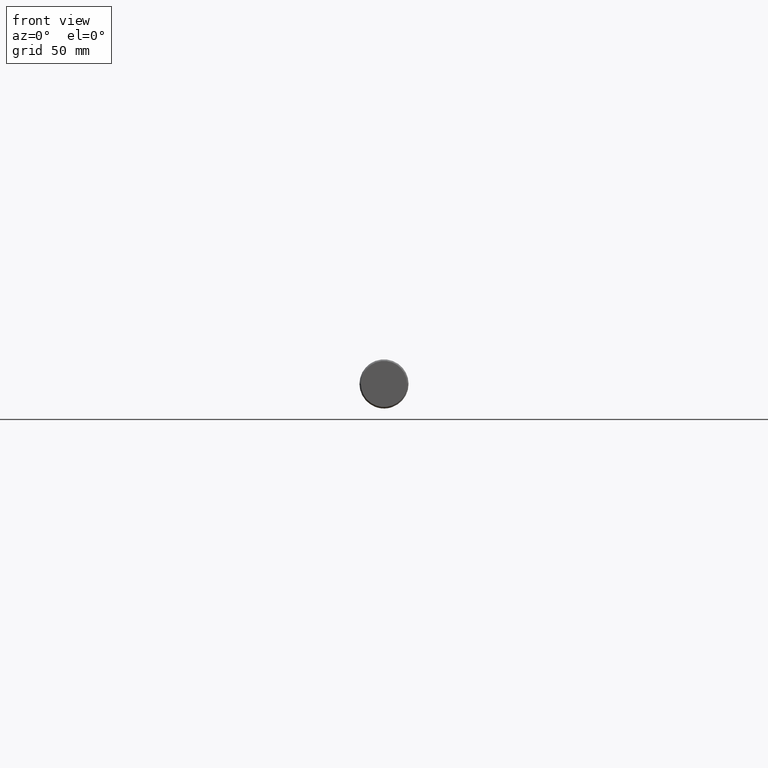
[diagram: clean part render]
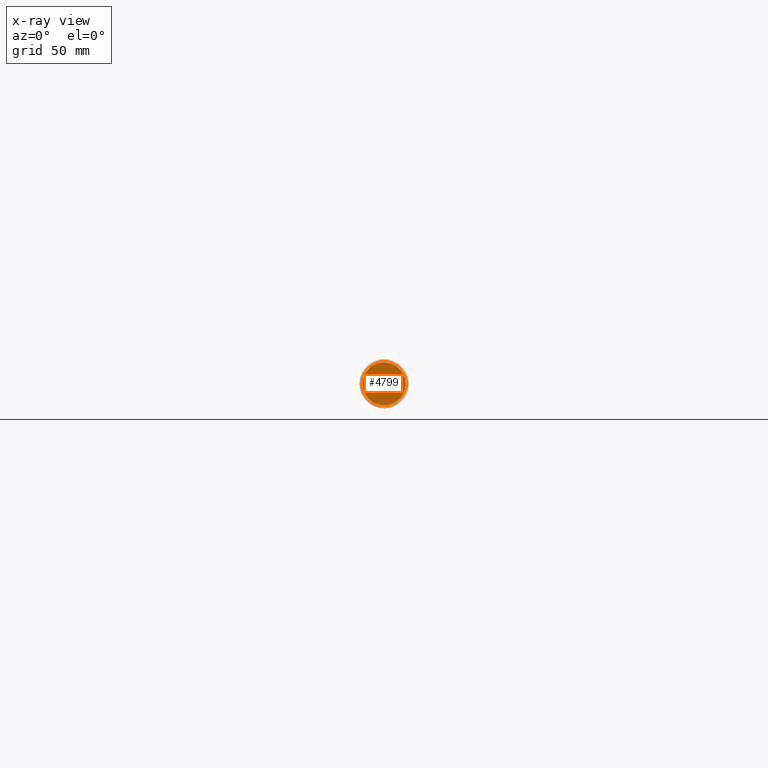
[diagram: x-ray — body ghosted, one internal face saturated and labeled with its STEP entity id]
A machine part, front view, then the same camera in x-ray: the body is ghosted and one INTERNAL B-rep face — a face not visible from any outside direction — is saturated and labeled: STEP entity #4799.
In plain terms, the highlighted planar face has unit normal (0, -1, 0).
Its self-contained STEP definition (entity closure, byte-faithful):
#551 = CARTESIAN_POINT ( 'NONE',  ( 4.776122516674677700E-014, -246.0000000000000000, 0.0000000000000000000 ) ) ;
#1375 = PLANE ( 'NONE',  #10398 ) ;
#2904 = AXIS2_PLACEMENT_3D ( 'NONE', #551, #12950, #11845 ) ;
#2937 = ORIENTED_EDGE ( 'NONE', *, *, #6537, .T. ) ;
#3765 = CIRCLE ( 'NONE', #2904, 14.85000000000004100 ) ;
#4799 = ADVANCED_FACE ( 'NONE', ( #9935 ), #1375, .F. ) ;
#5350 = DIRECTION ( 'NONE',  ( 3.061616997868382600E-016, -1.000000000000000000, 0.0000000000000000000 ) ) ;
#6537 = EDGE_CURVE ( 'NONE', #15535, #10182, #15686, .T. ) ;
#6608 = AXIS2_PLACEMENT_3D ( 'NONE', #14411, #10679, #11936 ) ;
#9935 = FACE_OUTER_BOUND ( 'NONE', #13867, .T. ) ;
#10182 = VERTEX_POINT ( 'NONE', #14554 ) ;
#10398 = AXIS2_PLACEMENT_3D ( 'NONE', #12936, #5350, #12822 ) ;
#10679 = DIRECTION ( 'NONE',  ( -3.061616997868382600E-016, 1.000000000000000000, -0.0000000000000000000 ) ) ;
#11845 = DIRECTION ( 'NONE',  ( -1.000000000000000000, 0.0000000000000000000, 0.0000000000000000000 ) ) ;
#11936 = DIRECTION ( 'NONE',  ( -1.000000000000000000, 0.0000000000000000000, 0.0000000000000000000 ) ) ;
#12087 = ORIENTED_EDGE ( 'NONE', *, *, #12184, .T. ) ;
#12184 = EDGE_CURVE ( 'NONE', #10182, #15535, #3765, .T. ) ;
#12822 = DIRECTION ( 'NONE',  ( 1.000000000000000000, 3.061616997868382600E-016, 0.0000000000000000000 ) ) ;
#12936 = CARTESIAN_POINT ( 'NONE',  ( 14.85000000000008800, -246.0000000000000000, 0.0000000000000000000 ) ) ;
#12950 = DIRECTION ( 'NONE',  ( -3.061616997868382600E-016, 1.000000000000000000, -0.0000000000000000000 ) ) ;
#13387 = CARTESIAN_POINT ( 'NONE',  ( 14.85000000000008800, -246.0000000000000000, 1.818600496733833800E-015 ) ) ;
#13867 = EDGE_LOOP ( 'NONE', ( #12087, #2937 ) ) ;
#14411 = CARTESIAN_POINT ( 'NONE',  ( 4.776122516674677700E-014, -246.0000000000000000, 0.0000000000000000000 ) ) ;
#14554 = CARTESIAN_POINT ( 'NONE',  ( -14.84999999999999300, -246.0000000000000000, 0.0000000000000000000 ) ) ;
#15535 = VERTEX_POINT ( 'NONE', #13387 ) ;
#15686 = CIRCLE ( 'NONE', #6608, 14.85000000000004100 ) ;